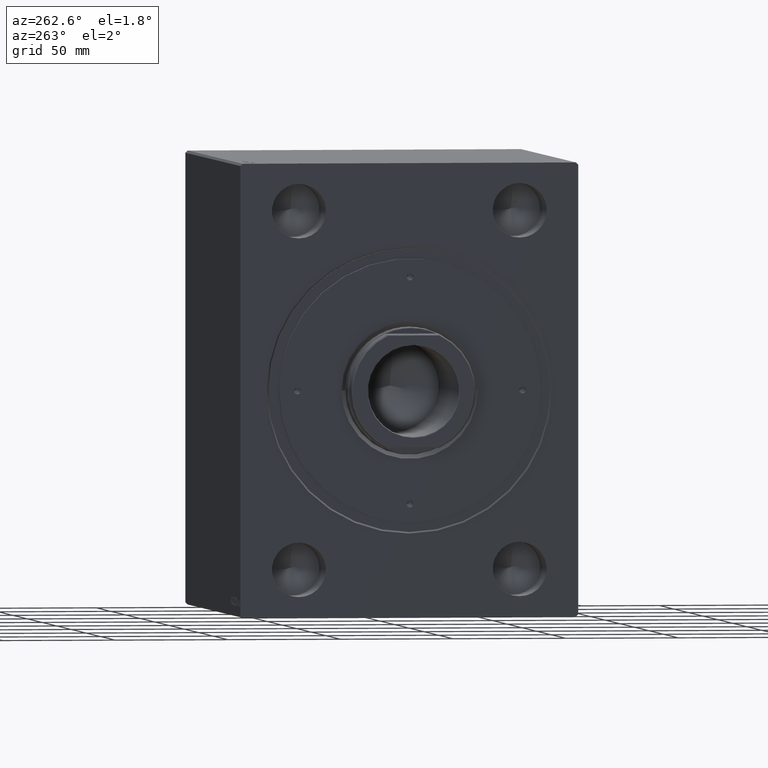
[diagram: clean part render]
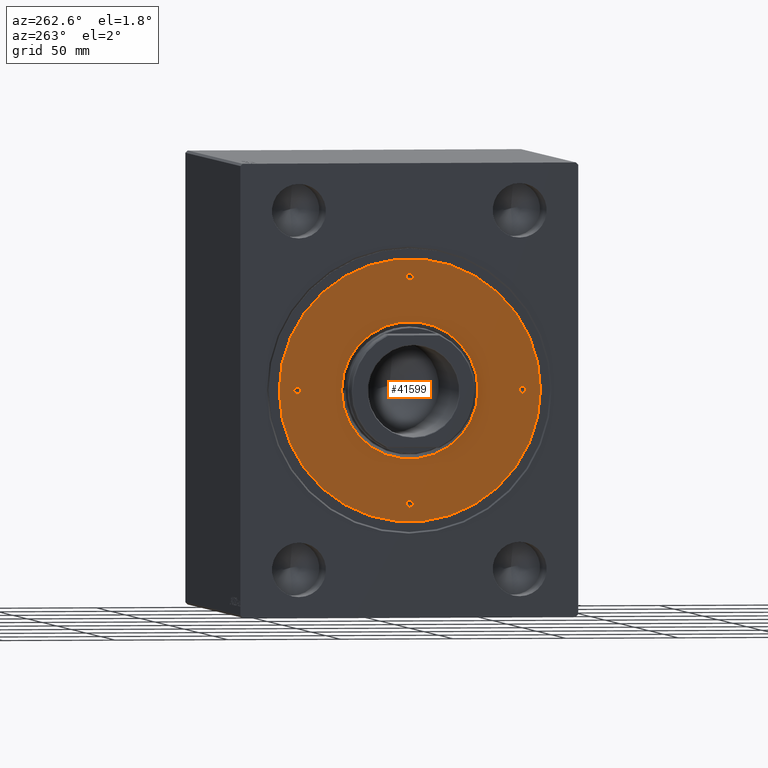
[diagram: same view with one face highlighted and labeled with its STEP entity id]
A machine part, auxiliary view. The second image highlights one B-rep face of the part: STEP entity #41599.
In plain terms, the highlighted planar face has unit normal (-1, 0, 0).
Its self-contained STEP definition (entity closure, byte-faithful):
#183 = CARTESIAN_POINT ( 'NONE',  ( 58.00000000000000000, 7.102951435054648059E-15, 139.8000000000000114 ) ) ;
#264 = EDGE_CURVE ( 'NONE', #32703, #26230, #42223, .T. ) ;
#277 = VERTEX_POINT ( 'NONE', #4670 ) ;
#336 = AXIS2_PLACEMENT_3D ( 'NONE', #24440, #12185, #9294 ) ;
#394 = CIRCLE ( 'NONE', #7476, 1.499999999999996891 ) ;
#550 = EDGE_CURVE ( 'NONE', #21171, #33262, #11785, .T. ) ;
#2356 = DIRECTION ( 'NONE',  ( 1.000000000000000000, 0.000000000000000000, 0.000000000000000000 ) ) ;
#2899 = EDGE_CURVE ( 'NONE', #39261, #32497, #18086, .T. ) ;
#3482 = DIRECTION ( 'NONE',  ( 1.000000000000000000, 0.000000000000000000, 0.000000000000000000 ) ) ;
#4377 = EDGE_CURVE ( 'NONE', #24520, #277, #40906, .T. ) ;
#4476 = CARTESIAN_POINT ( 'NONE',  ( 50.00000000000000000, 0.000000000000000000, 139.8000000000000114 ) ) ;
#4670 = CARTESIAN_POINT ( 'NONE',  ( 30.29999999999996163, 0.000000000000000000, 139.8000000000000114 ) ) ;
#5021 = ORIENTED_EDGE ( 'NONE', *, *, #2899, .F. ) ;
#5678 = EDGE_CURVE ( 'NONE', #35032, #38370, #34525, .T. ) ;
#6156 = VERTEX_POINT ( 'NONE', #20305 ) ;
#6706 = CIRCLE ( 'NONE', #14508, 1.499999999999994449 ) ;
#7253 = CARTESIAN_POINT ( 'NONE',  ( 0.000000000000000000, 0.000000000000000000, 139.8000000000000114 ) ) ;
#7476 = AXIS2_PLACEMENT_3D ( 'NONE', #13268, #23953, #30407 ) ;
#7745 = VERTEX_POINT ( 'NONE', #24871 ) ;
#9294 = DIRECTION ( 'NONE',  ( 1.000000000000000000, 0.000000000000000000, 0.000000000000000000 ) ) ;
#9579 = ORIENTED_EDGE ( 'NONE', *, *, #23997, .F. ) ;
#9620 = EDGE_LOOP ( 'NONE', ( #14427, #41889 ) ) ;
#9656 = AXIS2_PLACEMENT_3D ( 'NONE', #34231, #43581, #10200 ) ;
#10200 = DIRECTION ( 'NONE',  ( 1.000000000000000000, 0.000000000000000000, 0.000000000000000000 ) ) ;
#10372 = DIRECTION ( 'NONE',  ( 1.000000000000000000, 0.000000000000000000, 0.000000000000000000 ) ) ;
#10914 = DIRECTION ( 'NONE',  ( 0.000000000000000000, 0.000000000000000000, 1.000000000000000000 ) ) ;
#10939 = DIRECTION ( 'NONE',  ( -0.000000000000000000, -0.000000000000000000, 1.000000000000000000 ) ) ;
#11679 = EDGE_LOOP ( 'NONE', ( #35867, #18891 ) ) ;
#11785 = CIRCLE ( 'NONE', #9656, 1.499999999999996891 ) ;
#12185 = DIRECTION ( 'NONE',  ( -0.000000000000000000, -0.000000000000000000, 1.000000000000000000 ) ) ;
#12372 = DIRECTION ( 'NONE',  ( -0.000000000000000000, -0.000000000000000000, 1.000000000000000000 ) ) ;
#12409 = CARTESIAN_POINT ( 'NONE',  ( 0.000000000000000000, 0.000000000000000000, 139.8000000000000114 ) ) ;
#12495 = EDGE_CURVE ( 'NONE', #277, #24520, #13425, .T. ) ;
#12513 = AXIS2_PLACEMENT_3D ( 'NONE', #44010, #30213, #30660 ) ;
#12868 = CIRCLE ( 'NONE', #37746, 1.499999999999996891 ) ;
#12907 = CARTESIAN_POINT ( 'NONE',  ( -1.499999999999996891, 50.00000000000000000, 139.8000000000000114 ) ) ;
#13268 = CARTESIAN_POINT ( 'NONE',  ( 0.000000000000000000, -50.00000000000000000, 139.8000000000000114 ) ) ;
#13425 = CIRCLE ( 'NONE', #33345, 30.29999999999996518 ) ;
#13485 = DIRECTION ( 'NONE',  ( -0.000000000000000000, -0.000000000000000000, 1.000000000000000000 ) ) ;
#13497 = CARTESIAN_POINT ( 'NONE',  ( 51.50000000000000000, 0.000000000000000000, 139.8000000000000114 ) ) ;
#13865 = DIRECTION ( 'NONE',  ( 1.000000000000000000, 0.000000000000000000, 0.000000000000000000 ) ) ;
#14427 = ORIENTED_EDGE ( 'NONE', *, *, #43157, .F. ) ;
#14508 = AXIS2_PLACEMENT_3D ( 'NONE', #19506, #13485, #3482 ) ;
#15300 = DIRECTION ( 'NONE',  ( 0.000000000000000000, 0.000000000000000000, 1.000000000000000000 ) ) ;
#17849 = CARTESIAN_POINT ( 'NONE',  ( 0.000000000000000000, 0.000000000000000000, 139.8000000000000114 ) ) ;
#17929 = ORIENTED_EDGE ( 'NONE', *, *, #5678, .F. ) ;
#18086 = CIRCLE ( 'NONE', #12513, 1.499999999999994449 ) ;
#18891 = ORIENTED_EDGE ( 'NONE', *, *, #4377, .T. ) ;
#19079 = FACE_BOUND ( 'NONE', #32738, .T. ) ;
#19500 = CIRCLE ( 'NONE', #336, 1.499999999999996891 ) ;
#19506 = CARTESIAN_POINT ( 'NONE',  ( -50.00000000000000000, 0.000000000000000000, 139.8000000000000114 ) ) ;
#19546 = ORIENTED_EDGE ( 'NONE', *, *, #550, .F. ) ;
#20108 = CARTESIAN_POINT ( 'NONE',  ( 1.499999999999996891, 50.00000000000000000, 139.8000000000000114 ) ) ;
#20305 = CARTESIAN_POINT ( 'NONE',  ( 1.499999999999996891, -50.00000000000000000, 139.8000000000000114 ) ) ;
#21171 = VERTEX_POINT ( 'NONE', #20108 ) ;
#21214 = ORIENTED_EDGE ( 'NONE', *, *, #264, .T. ) ;
#21641 = ORIENTED_EDGE ( 'NONE', *, *, #40130, .F. ) ;
#22858 = FACE_BOUND ( 'NONE', #42313, .T. ) ;
#23013 = AXIS2_PLACEMENT_3D ( 'NONE', #41614, #10914, #35142 ) ;
#23051 = AXIS2_PLACEMENT_3D ( 'NONE', #12409, #15300, #28896 ) ;
#23670 = CARTESIAN_POINT ( 'NONE',  ( 48.50000000000000711, 1.836970198721022785E-16, 139.8000000000000114 ) ) ;
#23953 = DIRECTION ( 'NONE',  ( -0.000000000000000000, -0.000000000000000000, 1.000000000000000000 ) ) ;
#23979 = DIRECTION ( 'NONE',  ( 1.000000000000000000, 0.000000000000000000, 0.000000000000000000 ) ) ;
#23997 = EDGE_CURVE ( 'NONE', #32497, #39261, #24864, .T. ) ;
#24440 = CARTESIAN_POINT ( 'NONE',  ( 0.000000000000000000, 50.00000000000000000, 139.8000000000000114 ) ) ;
#24520 = VERTEX_POINT ( 'NONE', #40598 ) ;
#24864 = CIRCLE ( 'NONE', #29143, 1.499999999999994449 ) ;
#24871 = CARTESIAN_POINT ( 'NONE',  ( -1.499999999999996891, -50.00000000000000000, 139.8000000000000114 ) ) ;
#25753 = FACE_BOUND ( 'NONE', #11679, .T. ) ;
#26198 = FACE_OUTER_BOUND ( 'NONE', #29817, .T. ) ;
#26230 = VERTEX_POINT ( 'NONE', #183 ) ;
#27546 = DIRECTION ( 'NONE',  ( -0.000000000000000000, -0.000000000000000000, 1.000000000000000000 ) ) ;
#28321 = DIRECTION ( 'NONE',  ( -0.000000000000000000, -0.000000000000000000, -1.000000000000000000 ) ) ;
#28847 = ORIENTED_EDGE ( 'NONE', *, *, #40870, .F. ) ;
#28896 = DIRECTION ( 'NONE',  ( 1.000000000000000000, 0.000000000000000000, -0.000000000000000000 ) ) ;
#29143 = AXIS2_PLACEMENT_3D ( 'NONE', #4476, #10939, #37867 ) ;
#29525 = DIRECTION ( 'NONE',  ( -0.000000000000000000, -0.000000000000000000, -1.000000000000000000 ) ) ;
#29545 = FACE_BOUND ( 'NONE', #33355, .T. ) ;
#29727 = CARTESIAN_POINT ( 'NONE',  ( -50.00000000000000000, 0.000000000000000000, 139.8000000000000114 ) ) ;
#29743 = CARTESIAN_POINT ( 'NONE',  ( 0.000000000000000000, 0.000000000000000000, 139.8000000000000114 ) ) ;
#29761 = PLANE ( 'NONE',  #23051 ) ;
#29817 = EDGE_LOOP ( 'NONE', ( #21214, #40223 ) ) ;
#30213 = DIRECTION ( 'NONE',  ( -0.000000000000000000, -0.000000000000000000, 1.000000000000000000 ) ) ;
#30388 = DIRECTION ( 'NONE',  ( 0.000000000000000000, 0.000000000000000000, 1.000000000000000000 ) ) ;
#30407 = DIRECTION ( 'NONE',  ( 1.000000000000000000, 0.000000000000000000, 0.000000000000000000 ) ) ;
#30660 = DIRECTION ( 'NONE',  ( 1.000000000000000000, 0.000000000000000000, 0.000000000000000000 ) ) ;
#31441 = EDGE_CURVE ( 'NONE', #7745, #6156, #12868, .T. ) ;
#32497 = VERTEX_POINT ( 'NONE', #13497 ) ;
#32653 = DIRECTION ( 'NONE',  ( 1.000000000000000000, 0.000000000000000000, 0.000000000000000000 ) ) ;
#32703 = VERTEX_POINT ( 'NONE', #36603 ) ;
#32738 = EDGE_LOOP ( 'NONE', ( #17929, #21641 ) ) ;
#33262 = VERTEX_POINT ( 'NONE', #12907 ) ;
#33345 = AXIS2_PLACEMENT_3D ( 'NONE', #29743, #29525, #32653 ) ;
#33355 = EDGE_LOOP ( 'NONE', ( #9579, #5021 ) ) ;
#33637 = AXIS2_PLACEMENT_3D ( 'NONE', #7253, #30388, #10372 ) ;
#34231 = CARTESIAN_POINT ( 'NONE',  ( 0.000000000000000000, 50.00000000000000000, 139.8000000000000114 ) ) ;
#34525 = CIRCLE ( 'NONE', #37389, 1.499999999999994449 ) ;
#35032 = VERTEX_POINT ( 'NONE', #43160 ) ;
#35067 = CIRCLE ( 'NONE', #33637, 58.00000000000000000 ) ;
#35142 = DIRECTION ( 'NONE',  ( 1.000000000000000000, 0.000000000000000000, 0.000000000000000000 ) ) ;
#35212 = AXIS2_PLACEMENT_3D ( 'NONE', #17849, #28321, #13865 ) ;
#35867 = ORIENTED_EDGE ( 'NONE', *, *, #12495, .T. ) ;
#36603 = CARTESIAN_POINT ( 'NONE',  ( -58.00000000000000000, 0.000000000000000000, 139.8000000000000114 ) ) ;
#37109 = CARTESIAN_POINT ( 'NONE',  ( 0.000000000000000000, -50.00000000000000000, 139.8000000000000114 ) ) ;
#37389 = AXIS2_PLACEMENT_3D ( 'NONE', #29727, #12372, #2356 ) ;
#37564 = EDGE_CURVE ( 'NONE', #26230, #32703, #35067, .T. ) ;
#37746 = AXIS2_PLACEMENT_3D ( 'NONE', #37109, #27546, #23979 ) ;
#37867 = DIRECTION ( 'NONE',  ( 1.000000000000000000, 0.000000000000000000, 0.000000000000000000 ) ) ;
#38370 = VERTEX_POINT ( 'NONE', #39477 ) ;
#39261 = VERTEX_POINT ( 'NONE', #23670 ) ;
#39477 = CARTESIAN_POINT ( 'NONE',  ( -51.50000000000000000, 1.836970198721022785E-16, 139.8000000000000114 ) ) ;
#40130 = EDGE_CURVE ( 'NONE', #38370, #35032, #6706, .T. ) ;
#40223 = ORIENTED_EDGE ( 'NONE', *, *, #37564, .T. ) ;
#40598 = CARTESIAN_POINT ( 'NONE',  ( -30.29999999999996163, 3.710679801416475305E-15, 139.8000000000000114 ) ) ;
#40870 = EDGE_CURVE ( 'NONE', #33262, #21171, #19500, .T. ) ;
#40906 = CIRCLE ( 'NONE', #35212, 30.29999999999996518 ) ;
#41599 = ADVANCED_FACE ( 'NONE', ( #19079, #22858, #29545, #43124, #25753, #26198 ), #29761, .T. ) ;
#41614 = CARTESIAN_POINT ( 'NONE',  ( 0.000000000000000000, 0.000000000000000000, 139.8000000000000114 ) ) ;
#41889 = ORIENTED_EDGE ( 'NONE', *, *, #31441, .F. ) ;
#42223 = CIRCLE ( 'NONE', #23013, 58.00000000000000000 ) ;
#42313 = EDGE_LOOP ( 'NONE', ( #19546, #28847 ) ) ;
#43124 = FACE_BOUND ( 'NONE', #9620, .T. ) ;
#43157 = EDGE_CURVE ( 'NONE', #6156, #7745, #394, .T. ) ;
#43160 = CARTESIAN_POINT ( 'NONE',  ( -48.50000000000000711, 0.000000000000000000, 139.8000000000000114 ) ) ;
#43581 = DIRECTION ( 'NONE',  ( -0.000000000000000000, -0.000000000000000000, 1.000000000000000000 ) ) ;
#44010 = CARTESIAN_POINT ( 'NONE',  ( 50.00000000000000000, 0.000000000000000000, 139.8000000000000114 ) ) ;